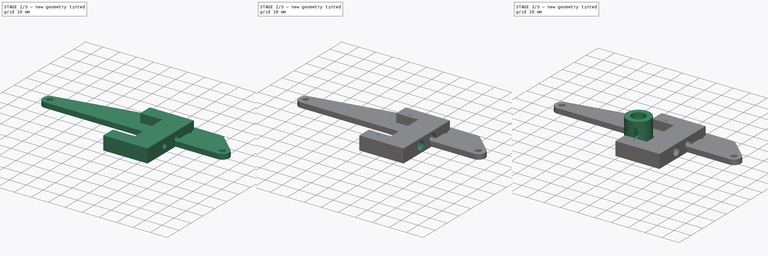
[diagram: build sequence overview — one tinted view per stage of 3, left to right]
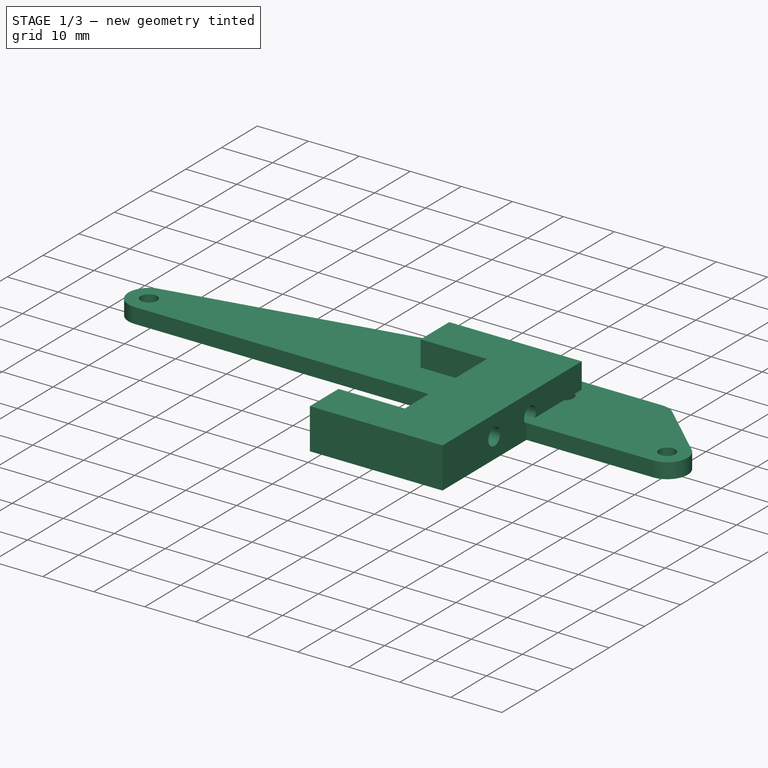
[diagram: stage 1 of 3 — iso view after this stage's code; geometry added in this stage tinted green]
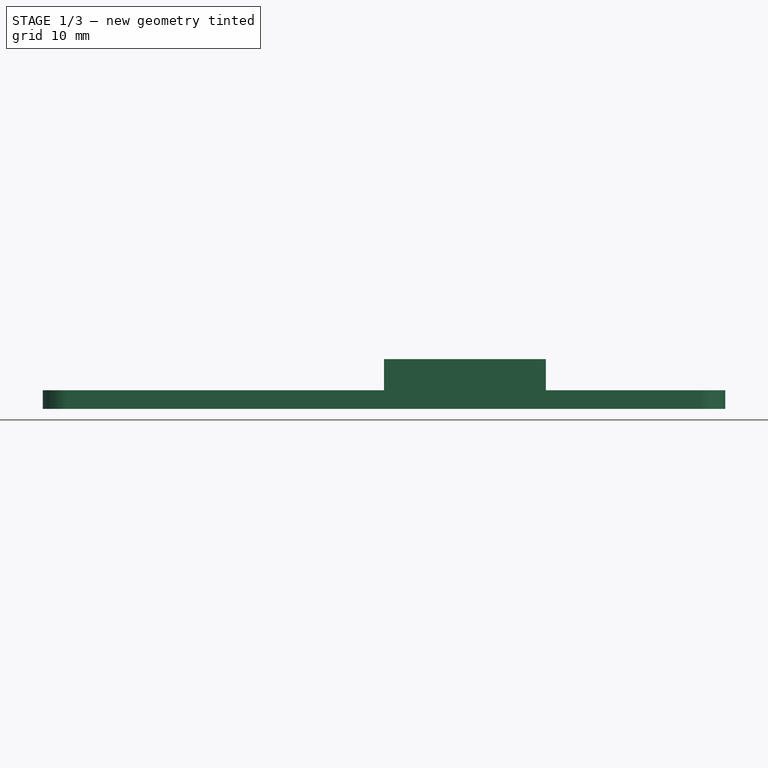
[diagram: stage 1 of 3 — front view after this stage's code; geometry added in this stage tinted green]
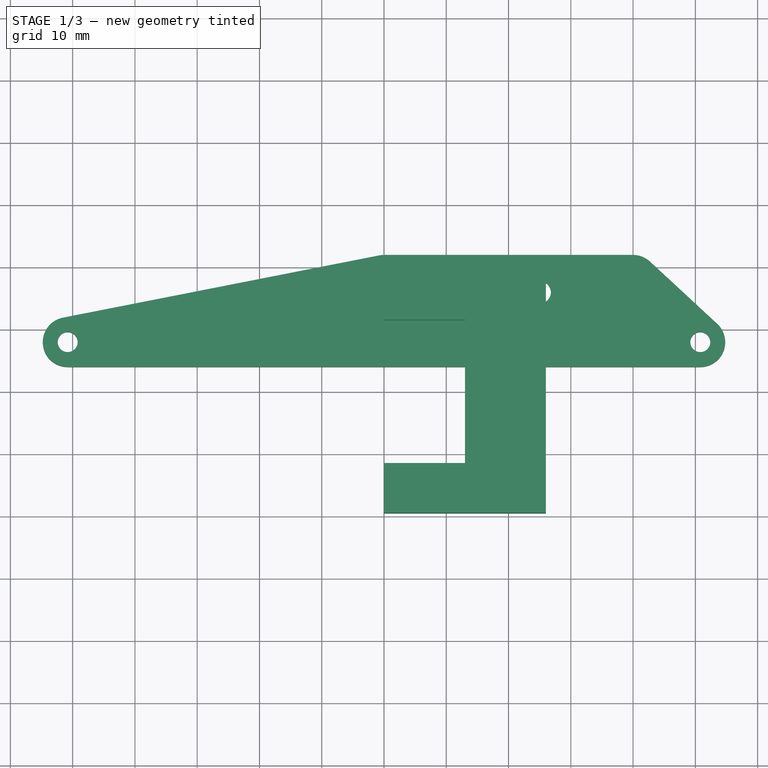
[diagram: stage 1 of 3 — top view after this stage's code; geometry added in this stage tinted green]
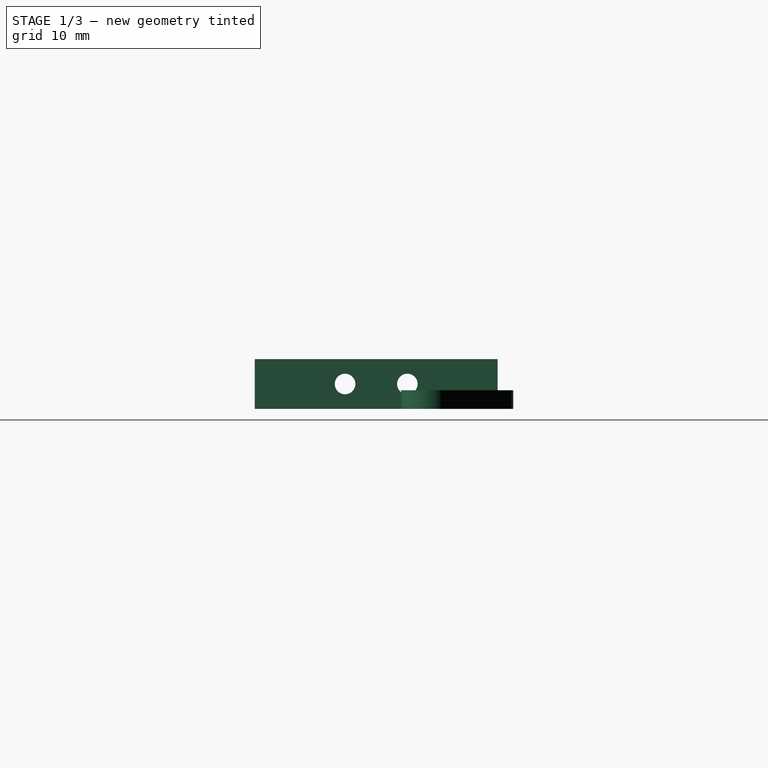
[diagram: stage 1 of 3 — right view after this stage's code; geometry added in this stage tinted green]
FCSTD DOCUMENT  (FreeCAD 0.18.4R)
Label: fulcrum2
License: All rights reserved
LicenseURL: http://en.wikipedia.org/wiki/All_rights_reserved
objects: Sketcher::SketchObject×8, PartDesign::Pocket×4, PartDesign::Pad×3, PartDesign::Body×3, PartDesign::Hole×1, TechDraw::DrawSVGTemplate×1, TechDraw::DrawViewPart×1, TechDraw::DrawPage×1
note: 27 computed .brp shape members not serialized (recipe doc carries the construction recipe); baked Part::Feature solids carry a one-line shape summary decoded from their .brp

FEATURE [PartDesign::Body] Body
  Group = -> [Sketch002,Sketch,Sketch001,Pad,Pocket,Pocket001]
  Origin = -> Origin
  Tip = -> Pocket001
FEATURE [Sketcher::SketchObject] Sketch003
  MapMode = 5
  Support = -> [XY_Plane002]
  sketch-geometry (8):
    g0: LineSegment StartX=0 StartY=19.5 StartZ=0 EndX=0 EndY=11.5 EndZ=0
    g1: LineSegment StartX=0 StartY=11.5 StartZ=0 EndX=13 EndY=11.5 EndZ=0
    g2: LineSegment StartX=13 StartY=11.5 StartZ=0 EndX=13 EndY=-11.5 EndZ=0
    g3: LineSegment StartX=13 StartY=-11.5 StartZ=0 EndX=0 EndY=-11.5 EndZ=0
    g4: LineSegment StartX=0 StartY=-11.5 StartZ=0 EndX=0 EndY=-19.5 EndZ=0
    g5: LineSegment StartX=0 StartY=-19.5 StartZ=0 EndX=26 EndY=-19.5 EndZ=0
    g6: LineSegment StartX=26 StartY=-19.5 StartZ=0 EndX=26 EndY=19.5 EndZ=0
    g7: LineSegment StartX=26 StartY=19.5 StartZ=0 EndX=0 EndY=19.5 EndZ=0
  constraints (23):
    c: PointOnObject(g0,g-2)
    c: PointOnObject(g0,g-2)
    c: Coincident(g0,g1)
    c: Horizontal(g1)
    c: Coincident(g1,g2)
    c: Vertical(g2)
    c: Coincident(g2,g3)
    c: Horizontal(g3)
    c: Coincident(g3,g4)
    c: PointOnObject(g4,g-2)
    c: Coincident(g4,g5)
    c: Horizontal(g5)
    c: Coincident(g5,g6)
    c: Coincident(g6,g7)
    c: Coincident(g7,g0)
    c: Horizontal(g7)
    c: Equal(g0,g4)
    c: Equal(g3,g1)
    c: DistanceY(g2,g2) = 23
    c: DistanceY(g0,g0) = 8
    c: DistanceX(g1,g1) = 13
    c: Symmetric(g6,g5,g-1)
    c: DistanceX(g1,g6) = 13
FEATURE [PartDesign::Pad] Pad001
  Length = 8
  Length2 = 100
  Profile = -> Sketch003
  Refine = true
  Type = 0
FEATURE [Sketcher::SketchObject] Sketch004
  ExternalGeometry = -> [Pad001]
  MapMode = 5
  Placement = pos=(13,0,0) rot=(0.57735,-0.57735,-0.57735;2.0944rad)
  Support = -> [Pad001]
  sketch-geometry (3):
    g0: Circle CenterX=-5 CenterY=4 CenterZ=0 NormalX=0 NormalY=0 NormalZ=1 AngleXU=0 Radius=1.5
    g1: Circle CenterX=5 CenterY=4 CenterZ=0 NormalX=0 NormalY=0 NormalZ=1 AngleXU=0 Radius=1.5
    g2: GeomPoint X=-11.5 Y=4 Z=0
  constraints (6):
    c: Symmetric(g-3,g-3,g2)
    c: Horizontal(g0,g2)
    c: Symmetric(g0,g1,g-2)
    c: DistanceX(g0,g1) = 10
    c: Diameter(g0) = 3
    c: Equal(g0,g1)
FEATURE [PartDesign::Hole] Hole
  BaseFeature = -> Pad001
  Depth = 25
  DepthType = 0
  Diameter = 3.3
  DrillPoint = 1
  DrillPointAngle = 118
  HoleCutCountersinkAngle = 90
  HoleCutDepth = 1.8
  HoleCutDiameter = 6
  HoleCutType = 1
  ModelActualThread = false
  Profile = -> Sketch004
  Refine = true
  Tapered = false
  TaperedAngle = 90
  ThreadAngle = 0
  ThreadClass = 0
  ThreadCutOffInner = 0
  ThreadCutOffOuter = 0
  ThreadDirection = 0
  ThreadFit = 0
  ThreadPitch = 0
  ThreadSize = 9
  ThreadType = 2
  Threaded = false
FEATURE [PartDesign::Body] Body001  label="Dave"
  Group = -> [Sketch003,Pad001,Sketch004,Hole,Sketch005,Pocket002,Sketch006,Pocket003]
  Origin = -> Origin001
  Placement = pos=(21,22,30) rot=(0.57735,0.57735,-0.57735;2.0944rad)
  Tip = -> Pocket003
FEATURE [Sketcher::SketchObject] Sketch007
  MapMode = 5
  Support = -> [XY_Plane003]
  sketch-geometry (14):
    g0: Circle CenterX=-50.8 CenterY=8 CenterZ=0 NormalX=0 NormalY=0 NormalZ=1 AngleXU=0 Radius=1.6
    g1: Circle CenterX=50.8 CenterY=8 CenterZ=0 NormalX=0 NormalY=0 NormalZ=1 AngleXU=0 Radius=1.6
    g2: GeomPoint X=20 Y=16 Z=0
    g3: Circle CenterX=15 CenterY=16 CenterZ=0 NormalX=0 NormalY=0 NormalZ=1 AngleXU=0 Radius=1.8
    g4: Circle CenterX=25 CenterY=16 CenterZ=0 NormalX=0 NormalY=0 NormalZ=1 AngleXU=0 Radius=1.8
    g5: LineSegment StartX=-50.8 StartY=4 StartZ=0 EndX=50.8 EndY=4 EndZ=0
    g6: ArcOfCircle CenterX=50.8 CenterY=8 CenterZ=0 NormalX=0 NormalY=0 NormalZ=1 AngleXU=0 Radius=4 StartAngle=4.71239 EndAngle=7.10703
    g7: LineSegment StartX=53.5176 StartY=10.935 StartZ=0 EndX=42.7176 EndY=20.935 EndZ=0
    g8: ArcOfCircle CenterX=40 CenterY=18 CenterZ=0 NormalX=0 NormalY=0 NormalZ=1 AngleXU=0 Radius=4 StartAngle=0.823841 EndAngle=1.5708
    g9: LineSegment StartX=40 StartY=22 StartZ=0 EndX=0 EndY=22 EndZ=0
    g10: ArcOfCircle CenterX=0 CenterY=18 CenterZ=0 NormalX=0 NormalY=0 NormalZ=1 AngleXU=0 Radius=4 StartAngle=1.5708 EndAngle=1.76516
    g11: LineSegment StartX=-0.772575 StartY=21.9247 StartZ=0 EndX=-51.5726 EndY=11.9247 EndZ=0
    g12: ArcOfCircle CenterX=-50.8 CenterY=8 CenterZ=0 NormalX=0 NormalY=0 NormalZ=1 AngleXU=0 Radius=4 StartAngle=1.76516 EndAngle=4.71238
    g13: GeomPoint X=20 Y=22 Z=0
  constraints (32):
    c: DistanceY(g-1,g0) = 8
    c: Symmetric(g0,g1,g-2)
    c: DistanceX(g0,g1) = 101.6
    c: Equal(g0,g1)
    c: Diameter(g0) = 3.2
    c: DistanceX(g-1,g2) = 20
    c: DistanceY(g-1,g2) = 16
    c: Equal(g4,g3)
    c: Diameter(g3) = 3.6
    c: Symmetric(g3,g4,g2)
    c: Horizontal(g4,g3)
    c: DistanceX(g3,g4) = 10
    c: Horizontal(g5)
    c: Tangent(g5,g6) = -1.5708
    c: Tangent(g6,g7) = -1.5708
    c: Tangent(g7,g8) = -1.5708
    c: Tangent(g8,g9) = -1.5708
    c: Tangent(g9,g10) = -1.5708
    c: Tangent(g10,g11) = -1.5708
    c: Coincident(g12,g0)
    c: Coincident(g12,g5)
    c: Horizontal(g9)
    c: DistanceX(g9,g9) = 40
    c: DistanceY(g4,g8) = 6
    c: Symmetric(g9,g8,g13)
    c: Vertical(g13,g2)
    c: Tangent(g12,g11) = -1.5708
    c: Equal(g12,g6)
    c: Coincident(g6,g1)
    c: Radius(g12) = 4
    c: Equal(g12,g10)
    c: Equal(g10,g8)
FEATURE [PartDesign::Pad] Pad002
  Length = 3
  Length2 = 100
  Profile = -> Sketch007
  Refine = true
  Type = 0
FEATURE [PartDesign::Body] Body002  label="attachment"
  Group = -> [Sketch007,Pad002]
  Origin = -> Origin002
  Tip = -> Pad002
FEATURE [TechDraw::DrawSVGTemplate] Template
  Height = 210
  Orientation = 1
  Width = 297
FEATURE [TechDraw::DrawViewPart] View
  CoarseView = false
  Direction = (0,0,1)
  Focus = 100
  HardHidden = false
  IsoCount = 0
  IsoHidden = false
  IsoVisible = false
  LockPosition = false
  Perspective = false
  Rotation = 0
  ScaleType = 0
  SeamHidden = false
  SeamVisible = false
  SmoothHidden = false
  SmoothVisible = false
  Source = -> [Body002]
  X = 148.5
  Y = 105
FEATURE [TechDraw::DrawPage] Page
  KeepUpdated = true
  ProjectionType = 0
  Template = -> Template
  Views = -> [View]
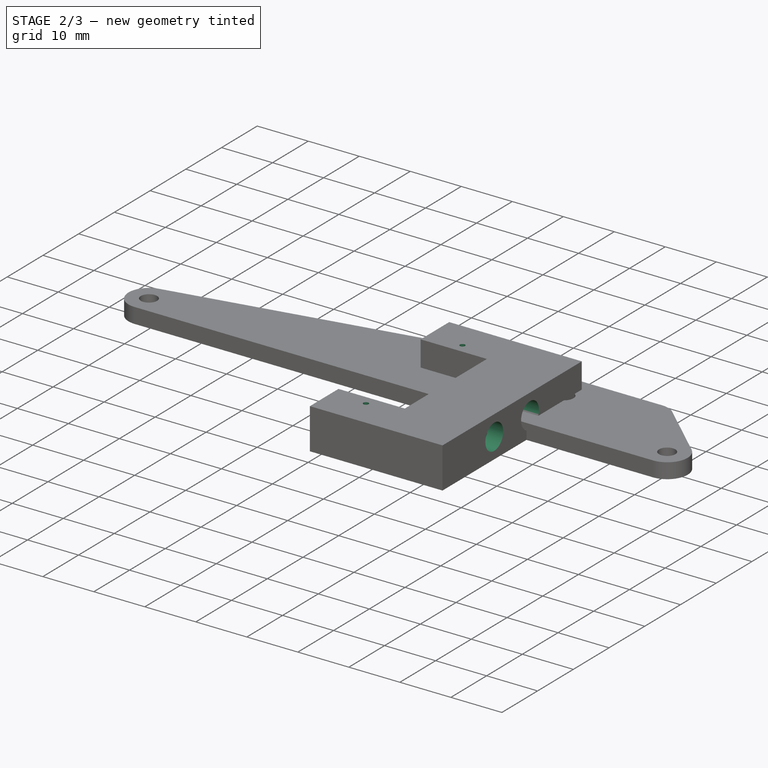
[diagram: stage 2 of 3 — iso view after this stage's code; geometry added in this stage tinted green]
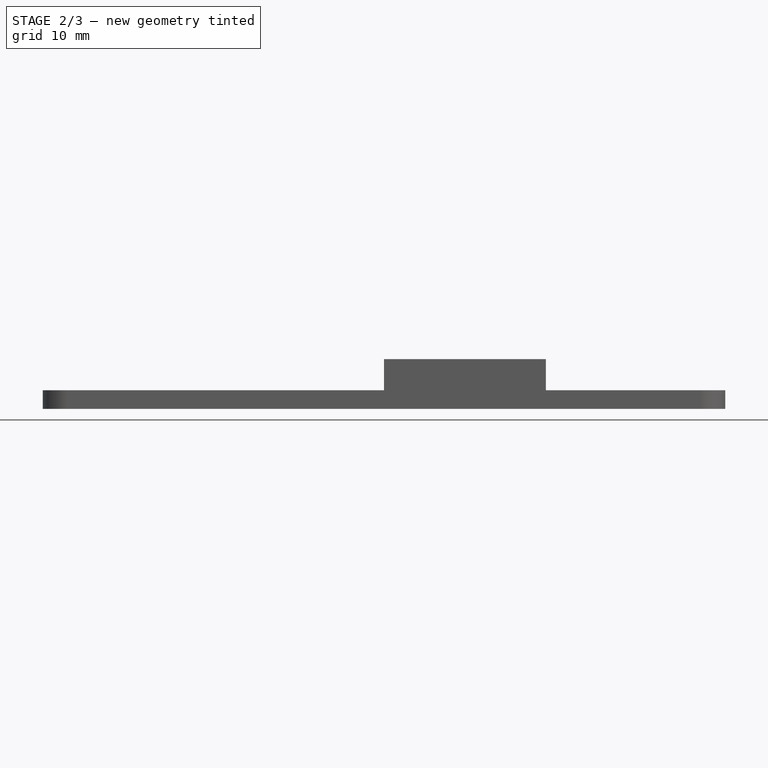
[diagram: stage 2 of 3 — front view after this stage's code; geometry added in this stage tinted green]
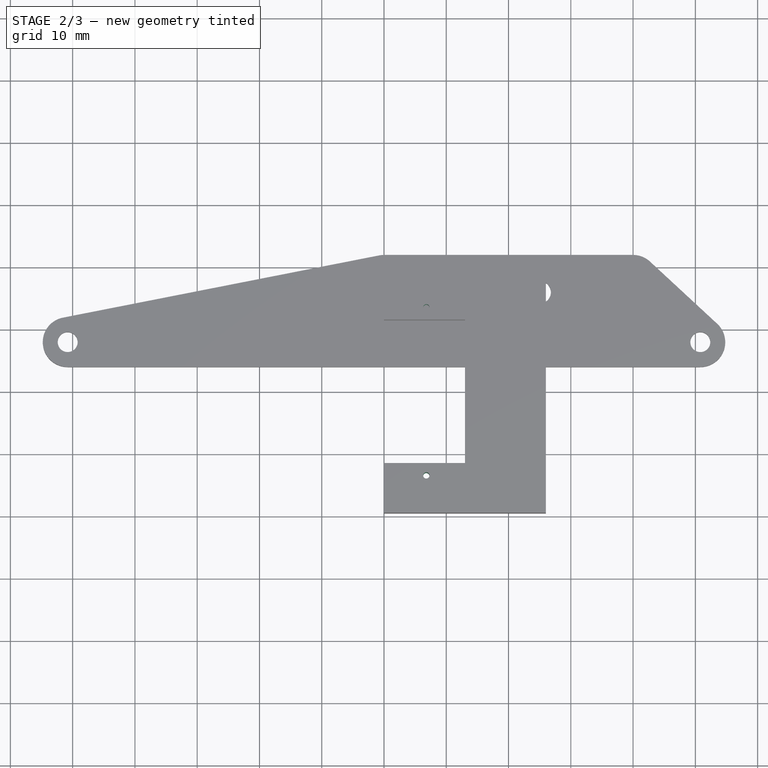
[diagram: stage 2 of 3 — top view after this stage's code; geometry added in this stage tinted green]
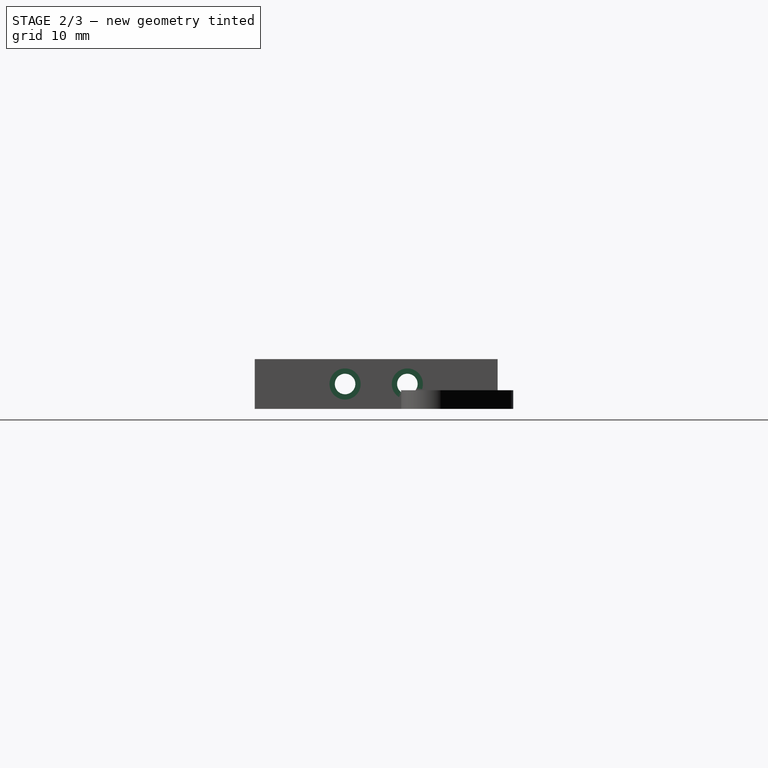
[diagram: stage 2 of 3 — right view after this stage's code; geometry added in this stage tinted green]
FEATURE [Sketcher::SketchObject] Sketch005
  ExternalGeometry = -> [Hole]
  MapMode = 5
  Placement = pos=(0,0,8) rot=(0,0,1;0rad)
  Support = -> [Hole]
  sketch-geometry (2):
    g0: Circle CenterX=6.8 CenterY=13.5 CenterZ=0 NormalX=0 NormalY=0 NormalZ=1 AngleXU=0 Radius=0.5
    g1: Circle CenterX=6.8 CenterY=-13.5 CenterZ=0 NormalX=0 NormalY=0 NormalZ=1 AngleXU=0 Radius=0.5
  constraints (5):
    c: Symmetric(g0,g1,g-1)
    c: Equal(g0,g1)
    c: DistanceX(g0,g-3) = 6.2
    c: DistanceY(g-3,g0) = 2
    c: Diameter(g0) = 1
FEATURE [PartDesign::Pocket] Pocket002
  BaseFeature = -> Hole
  Length = 5
  Length2 = 100
  Profile = -> Sketch005
  Refine = true
  Type = 1
FEATURE [Sketcher::SketchObject] Sketch006
  ExternalGeometry = -> [Pocket002]
  MapMode = 5
  Placement = pos=(26,0,0) rot=(0.57735,0.57735,0.57735;2.0944rad)
  Support = -> [Pocket002]
  sketch-geometry (2):
    g0: Circle CenterX=-5 CenterY=4 CenterZ=0 NormalX=0 NormalY=0 NormalZ=1 AngleXU=0 Radius=2.5
    g1: Circle CenterX=5 CenterY=4 CenterZ=0 NormalX=0 NormalY=0 NormalZ=1 AngleXU=0 Radius=2.5
  constraints (4):
    c: Coincident(g0,g-3)
    c: Coincident(g1,g-4)
    c: Equal(g0,g1)
    c: Diameter(g0) = 5
FEATURE [PartDesign::Pocket] Pocket003
  BaseFeature = -> Pocket002
  Length = 3
  Length2 = 100
  Profile = -> Sketch006
  Refine = true
  Type = 0
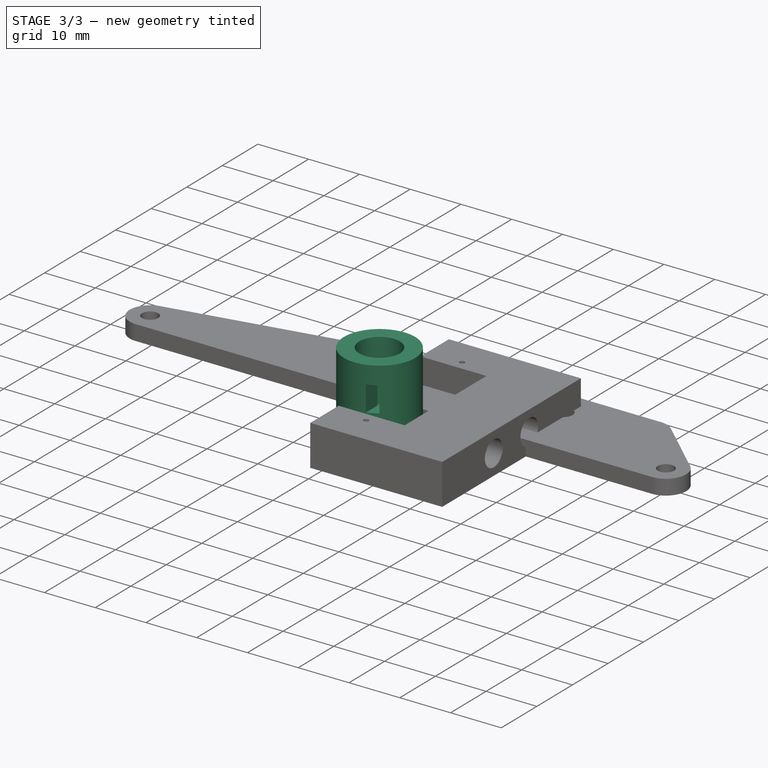
[diagram: stage 3 of 3 — iso view after this stage's code; geometry added in this stage tinted green]
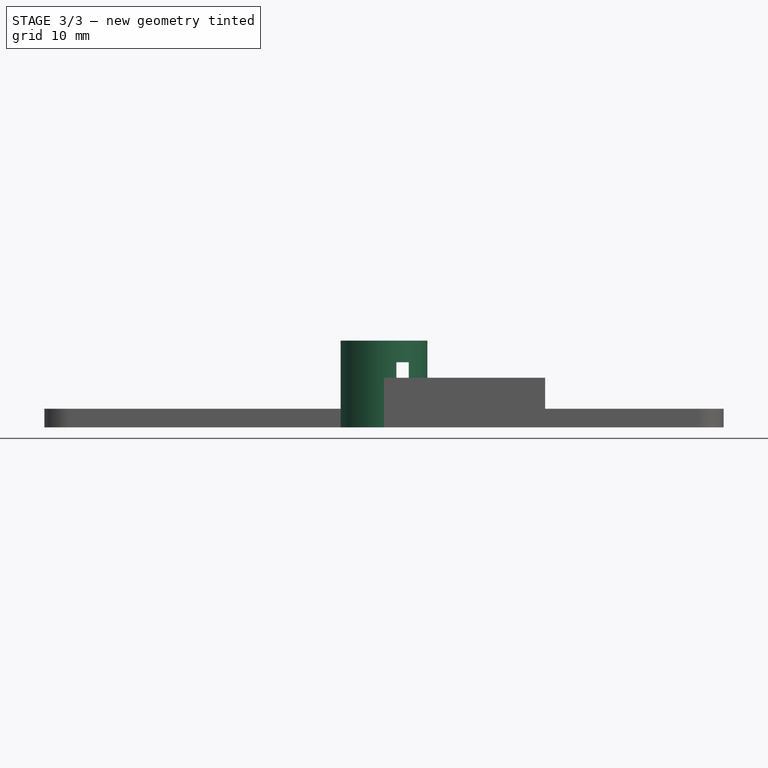
[diagram: stage 3 of 3 — front view after this stage's code; geometry added in this stage tinted green]
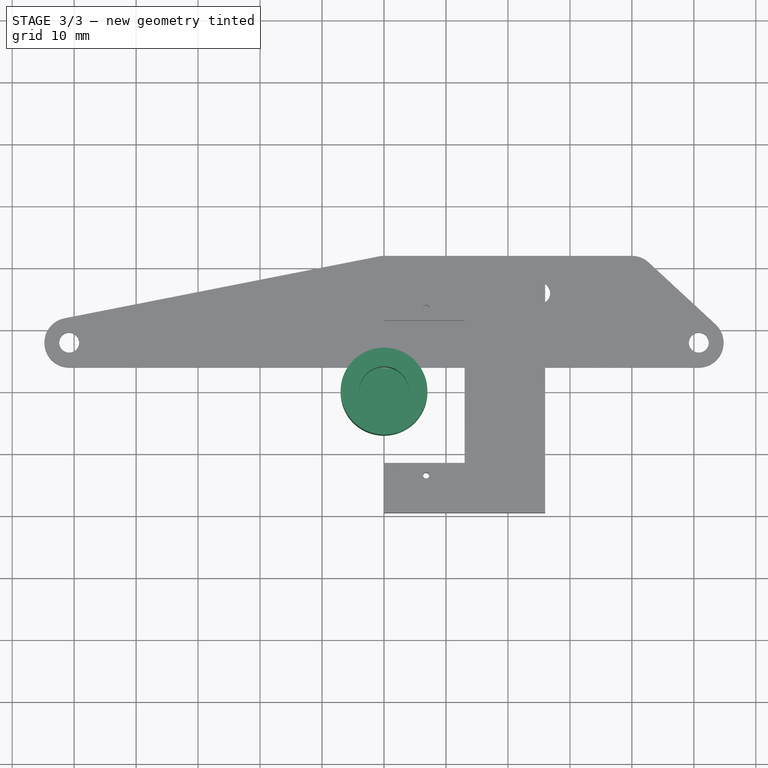
[diagram: stage 3 of 3 — top view after this stage's code; geometry added in this stage tinted green]
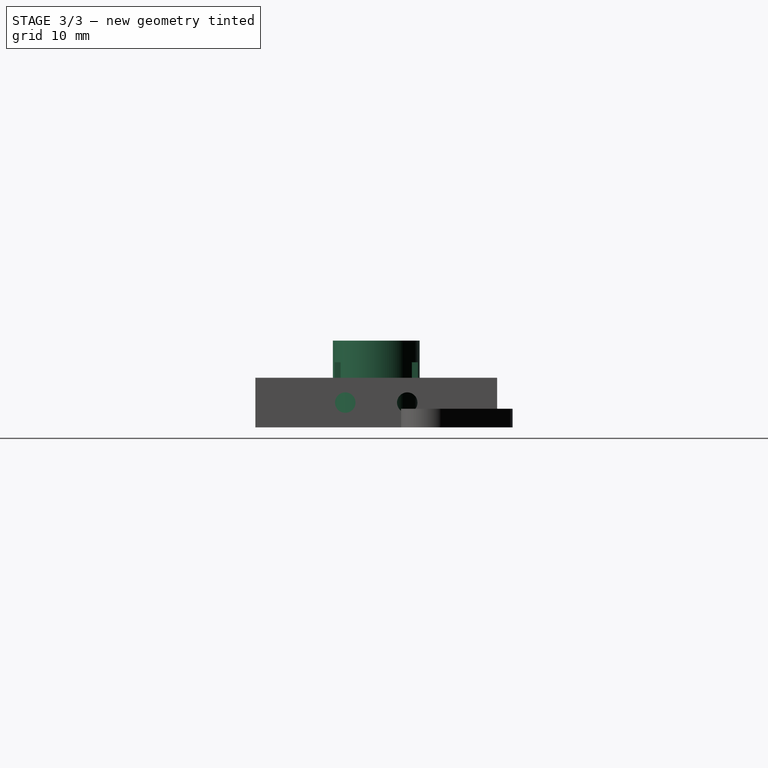
[diagram: stage 3 of 3 — right view after this stage's code; geometry added in this stage tinted green]
FEATURE [Sketcher::SketchObject] Sketch
  MapMode = 5
  Support = -> [XY_Plane]
  sketch-geometry (1):
    g0: Circle CenterX=0 CenterY=0 CenterZ=0 NormalX=0 NormalY=0 NormalZ=1 AngleXU=0 Radius=7
  constraints (2):
    c: Diameter(g0) = 14
    c: Coincident(g0,g-1)
FEATURE [Sketcher::SketchObject] Sketch001
  MapMode = 5
  Placement = pos=(0,0,14) rot=(0,0,1;0rad)
  sketch-geometry (1):
    g0: Circle CenterX=0 CenterY=0 CenterZ=0 NormalX=0 NormalY=0 NormalZ=1 AngleXU=0 Radius=4
  constraints (2):
    c: Coincident(g0,g-1)
    c: Diameter(g0) = 8
FEATURE [Sketcher::SketchObject] Sketch002
  MapMode = 5
  Placement = pos=(0,0,0) rot=(1,0,0;1.5708rad)
  Support = -> [XZ_Plane]
  sketch-geometry (4):
    g0: LineSegment StartX=2 StartY=10.5 StartZ=0 EndX=4 EndY=10.5 EndZ=0
    g1: LineSegment StartX=4 StartY=10.5 StartZ=0 EndX=4 EndY=5.5 EndZ=0
    g2: LineSegment StartX=4 StartY=5.5 StartZ=0 EndX=2 EndY=5.5 EndZ=0
    g3: LineSegment StartX=2 StartY=5.5 StartZ=0 EndX=2 EndY=10.5 EndZ=0
  constraints (12):
    c: Coincident(g0,g1)
    c: Coincident(g1,g2)
    c: Coincident(g2,g3)
    c: Coincident(g3,g0)
    c: Horizontal(g0)
    c: Horizontal(g2)
    c: Vertical(g1)
    c: Vertical(g3)
    c: DistanceX(g0,g0) = 2
    c: DistanceY(g1,g1) = 5
    c: DistanceY(g-1,g2) = 5.5
    c: DistanceX(g-1,g2) = 2
FEATURE [PartDesign::Pad] Pad
  Length = 14
  Length2 = 100
  Profile = -> Sketch
  Refine = true
  Type = 0
FEATURE [PartDesign::Pocket] Pocket
  BaseFeature = -> Pad
  Length = 12
  Length2 = 100
  Profile = -> Sketch001
  Refine = true
  Type = 0
FEATURE [PartDesign::Pocket] Pocket001
  BaseFeature = -> Pocket
  Length = 5
  Length2 = 100
  Midplane = true
  Profile = -> Sketch002
  Refine = true
  Type = 1
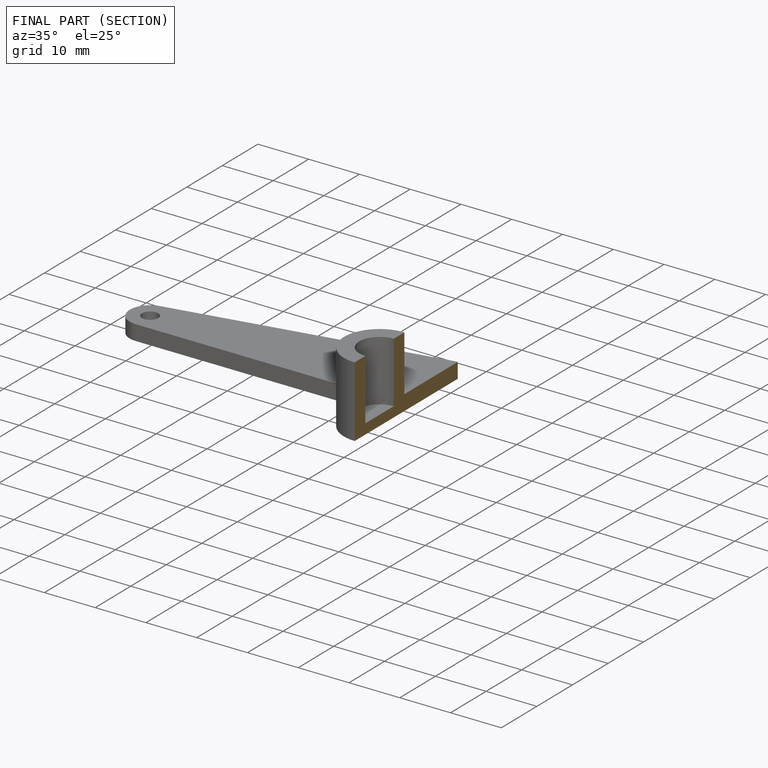
[diagram: finished part — half-section view (interior)]
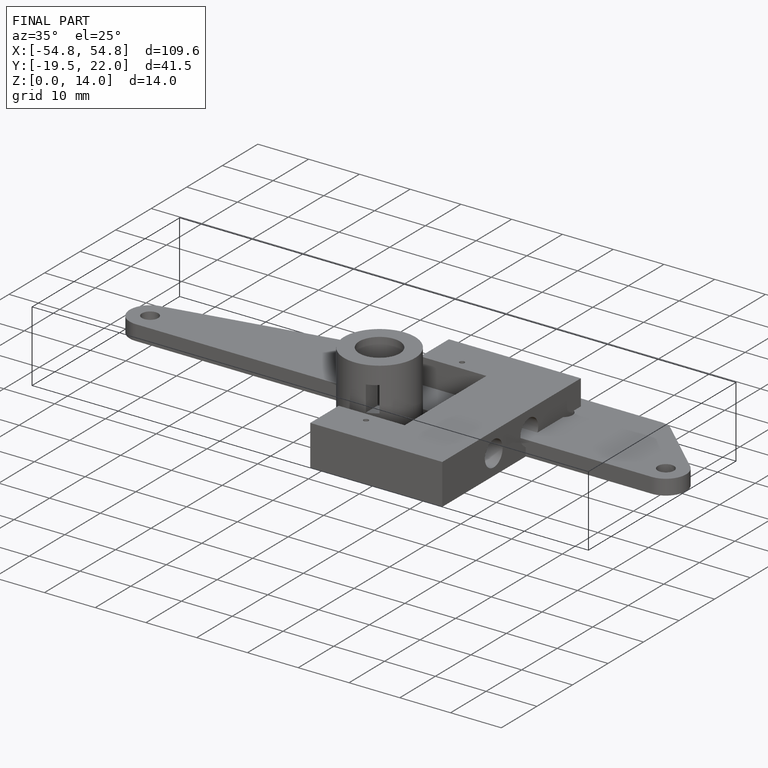
[diagram: finished part — iso view with bounding-box wireframe]
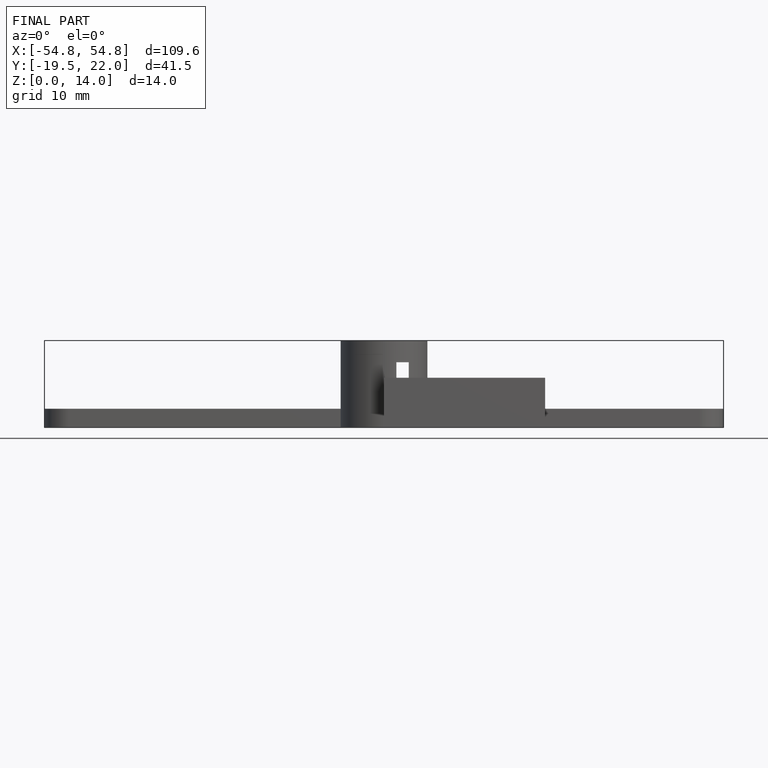
[diagram: finished part — front view with bounding-box wireframe]
